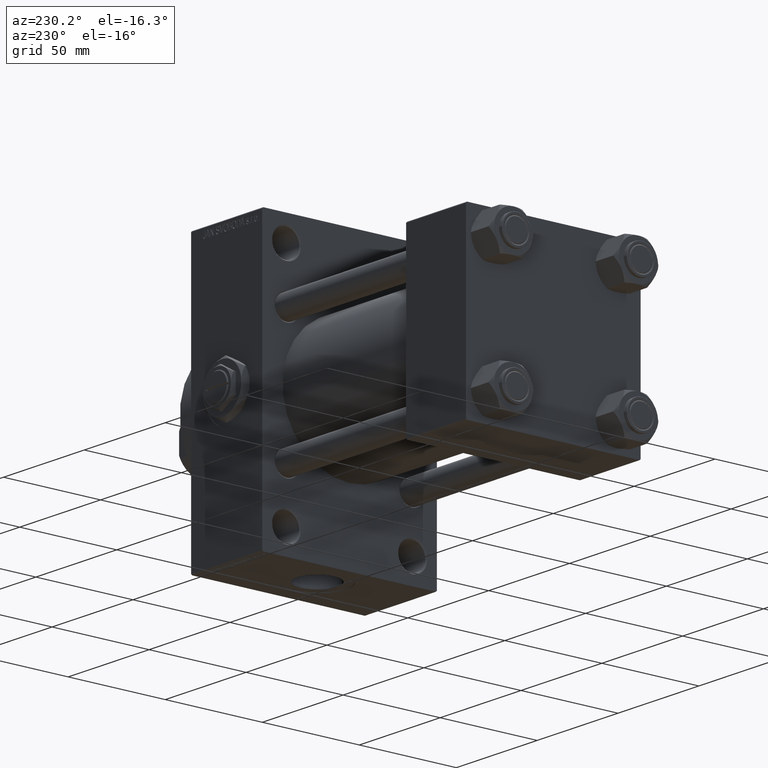
[diagram: clean part render]
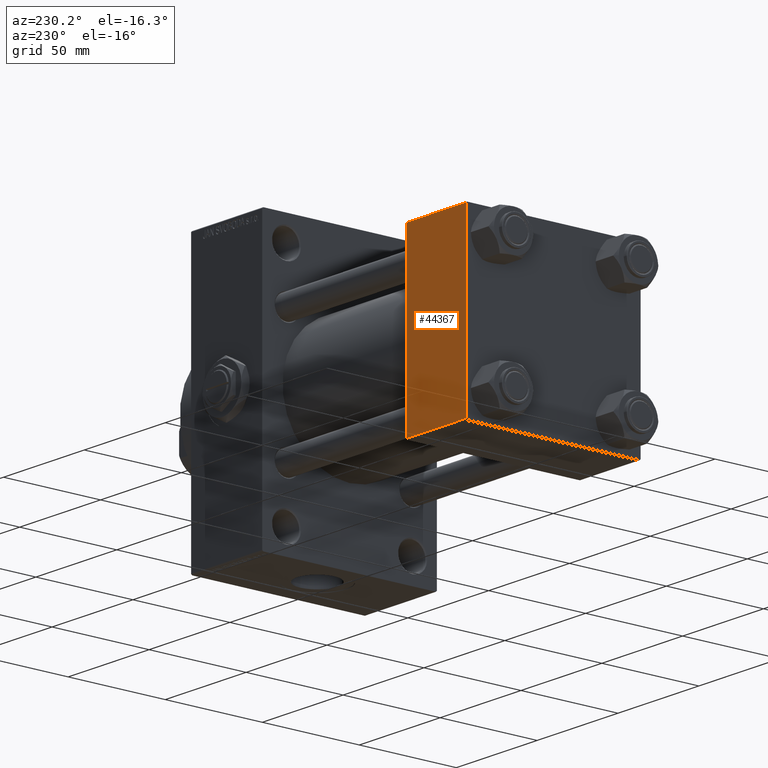
[diagram: same view with one face highlighted and labeled with its STEP entity id]
A machine part, auxiliary view. The second image highlights one B-rep face of the part: STEP entity #44367.
In plain terms, the highlighted planar face has unit normal (0, 1, 0).
Its self-contained STEP definition (entity closure, byte-faithful):
#726 = LINE ( 'NONE', #35542, #14029 ) ;
#1146 = CARTESIAN_POINT ( 'NONE',  ( 37.00000000000000000, 44.99999999999998579, 44.50000000000001421 ) ) ;
#2614 = LINE ( 'NONE', #3106, #48028 ) ;
#3106 = CARTESIAN_POINT ( 'NONE',  ( 37.00000000000000000, 44.99999999999998579, 44.50000000000001421 ) ) ;
#3198 = VERTEX_POINT ( 'NONE', #10280 ) ;
#6121 = DIRECTION ( 'NONE',  ( 0.000000000000000000, 0.000000000000000000, -1.000000000000000000 ) ) ;
#9600 = EDGE_CURVE ( 'NONE', #35653, #30932, #26945, .T. ) ;
#10280 = CARTESIAN_POINT ( 'NONE',  ( 0.000000000000000000, 44.99999999999998579, 44.50000000000001421 ) ) ;
#10841 = ORIENTED_EDGE ( 'NONE', *, *, #21261, .T. ) ;
#10978 = DIRECTION ( 'NONE',  ( 0.000000000000000000, -0.000000000000000000, 1.000000000000000000 ) ) ;
#14029 = VECTOR ( 'NONE', #6121, 1000.000000000000000 ) ;
#17232 = VERTEX_POINT ( 'NONE', #1146 ) ;
#18039 = ORIENTED_EDGE ( 'NONE', *, *, #48971, .T. ) ;
#20798 = EDGE_LOOP ( 'NONE', ( #18039, #28758, #39544, #10841 ) ) ;
#21261 = EDGE_CURVE ( 'NONE', #3198, #17232, #2614, .T. ) ;
#24066 = LINE ( 'NONE', #47142, #31774 ) ;
#26913 = CARTESIAN_POINT ( 'NONE',  ( 0.000000000000000000, 44.99999999999998579, -44.49999999999995737 ) ) ;
#26945 = LINE ( 'NONE', #42328, #28725 ) ;
#28725 = VECTOR ( 'NONE', #38605, 1000.000000000000000 ) ;
#28758 = ORIENTED_EDGE ( 'NONE', *, *, #9600, .T. ) ;
#30346 = DIRECTION ( 'NONE',  ( -0.000000000000000000, 1.000000000000000000, 0.000000000000000000 ) ) ;
#30932 = VERTEX_POINT ( 'NONE', #26913 ) ;
#31774 = VECTOR ( 'NONE', #43665, 1000.000000000000000 ) ;
#34331 = CARTESIAN_POINT ( 'NONE',  ( 37.00000000000000000, 44.99999999999998579, -44.49999999999995737 ) ) ;
#35542 = CARTESIAN_POINT ( 'NONE',  ( 0.000000000000000000, 44.99999999999998579, 45.00000000000001421 ) ) ;
#35653 = VERTEX_POINT ( 'NONE', #34331 ) ;
#38605 = DIRECTION ( 'NONE',  ( -1.000000000000000000, 0.000000000000000000, 0.000000000000000000 ) ) ;
#38758 = AXIS2_PLACEMENT_3D ( 'NONE', #45266, #30346, #10978 ) ;
#39544 = ORIENTED_EDGE ( 'NONE', *, *, #41058, .F. ) ;
#40880 = DIRECTION ( 'NONE',  ( 1.000000000000000000, 0.000000000000000000, 0.000000000000000000 ) ) ;
#41058 = EDGE_CURVE ( 'NONE', #3198, #30932, #726, .T. ) ;
#42328 = CARTESIAN_POINT ( 'NONE',  ( 37.00000000000000000, 44.99999999999998579, -44.49999999999998579 ) ) ;
#43665 = DIRECTION ( 'NONE',  ( 0.000000000000000000, 0.000000000000000000, -1.000000000000000000 ) ) ;
#44367 = ADVANCED_FACE ( 'NONE', ( #44522 ), #48730, .T. ) ;
#44522 = FACE_OUTER_BOUND ( 'NONE', #20798, .T. ) ;
#45266 = CARTESIAN_POINT ( 'NONE',  ( 37.00000000000000000, 44.99999999999998579, 45.00000000000001421 ) ) ;
#47142 = CARTESIAN_POINT ( 'NONE',  ( 37.00000000000000000, 44.99999999999998579, 45.00000000000001421 ) ) ;
#48028 = VECTOR ( 'NONE', #40880, 1000.000000000000000 ) ;
#48730 = PLANE ( 'NONE',  #38758 ) ;
#48971 = EDGE_CURVE ( 'NONE', #17232, #35653, #24066, .T. ) ;